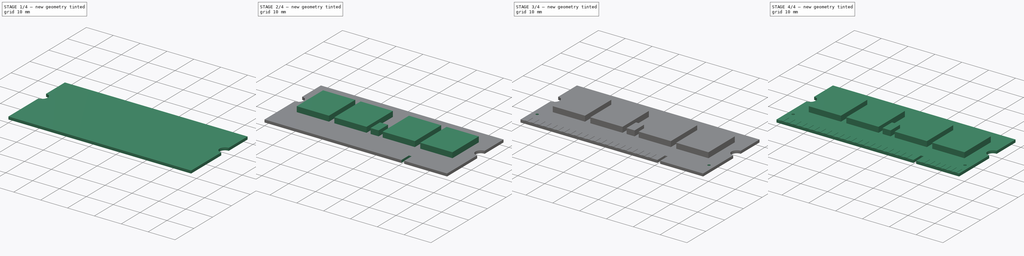
[diagram: build sequence overview — one tinted view per stage of 4, left to right]
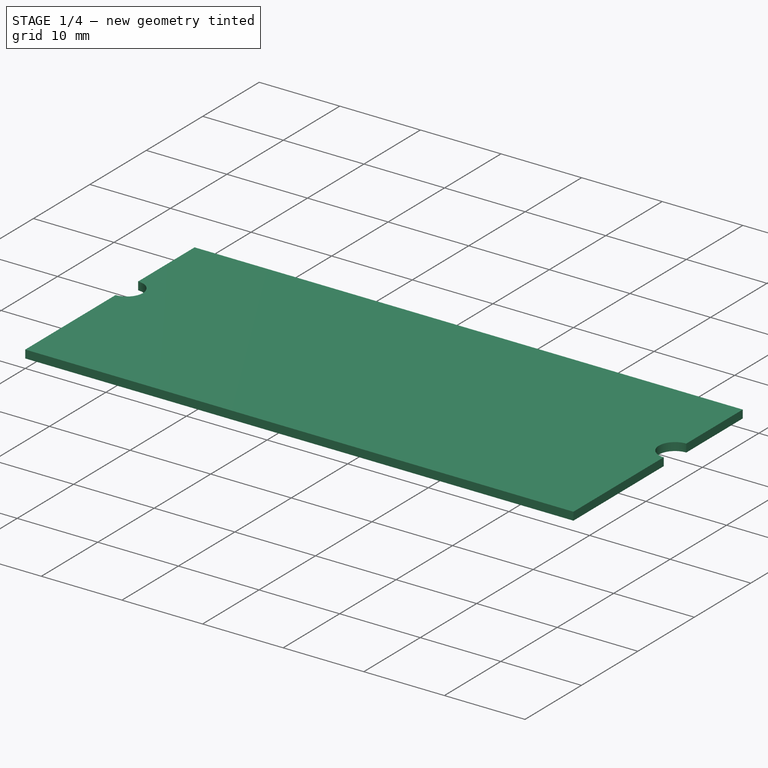
[diagram: stage 1 of 4 — iso view after this stage's code; geometry added in this stage tinted green]
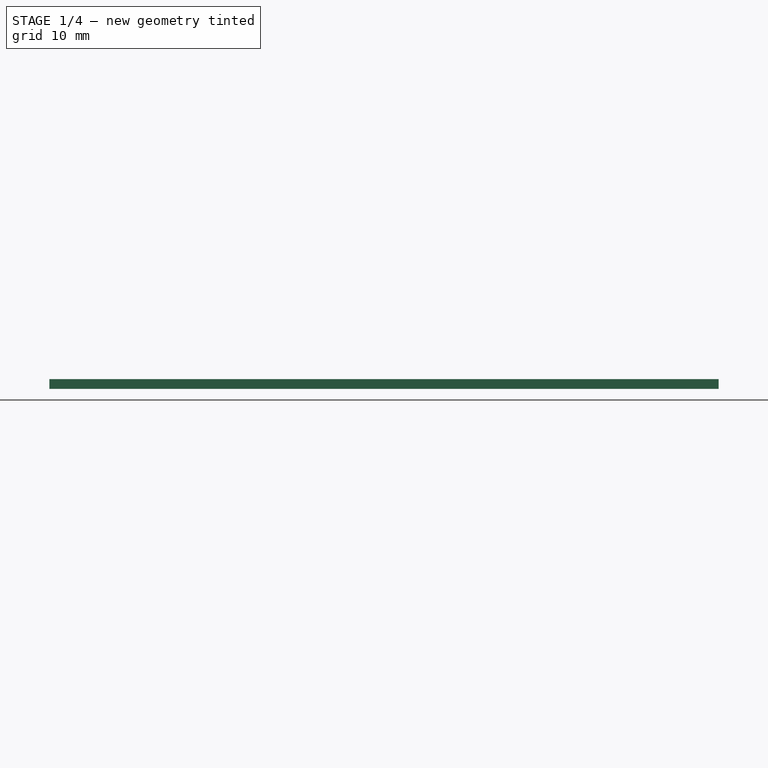
[diagram: stage 1 of 4 — front view after this stage's code; geometry added in this stage tinted green]
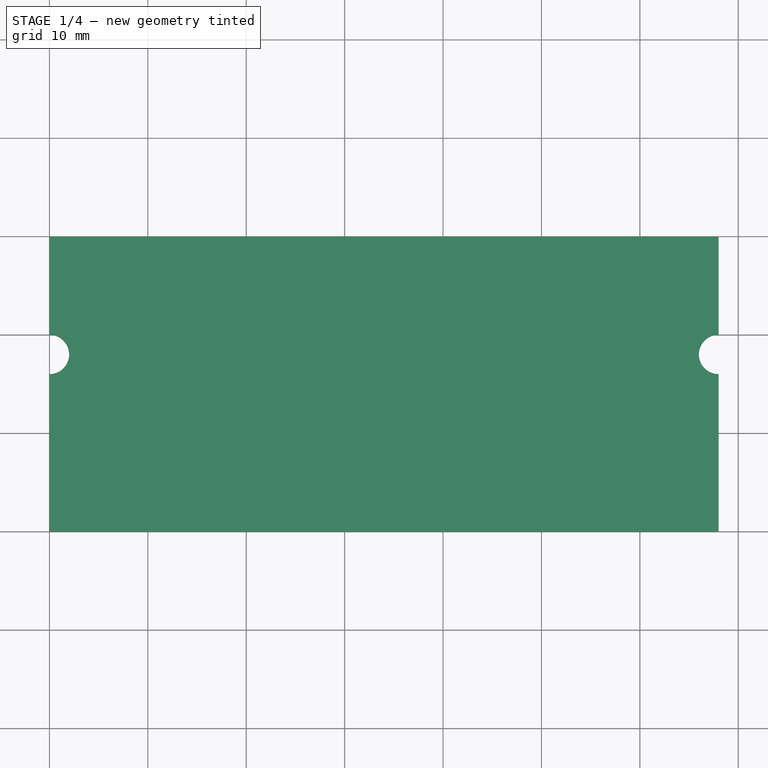
[diagram: stage 1 of 4 — top view after this stage's code; geometry added in this stage tinted green]
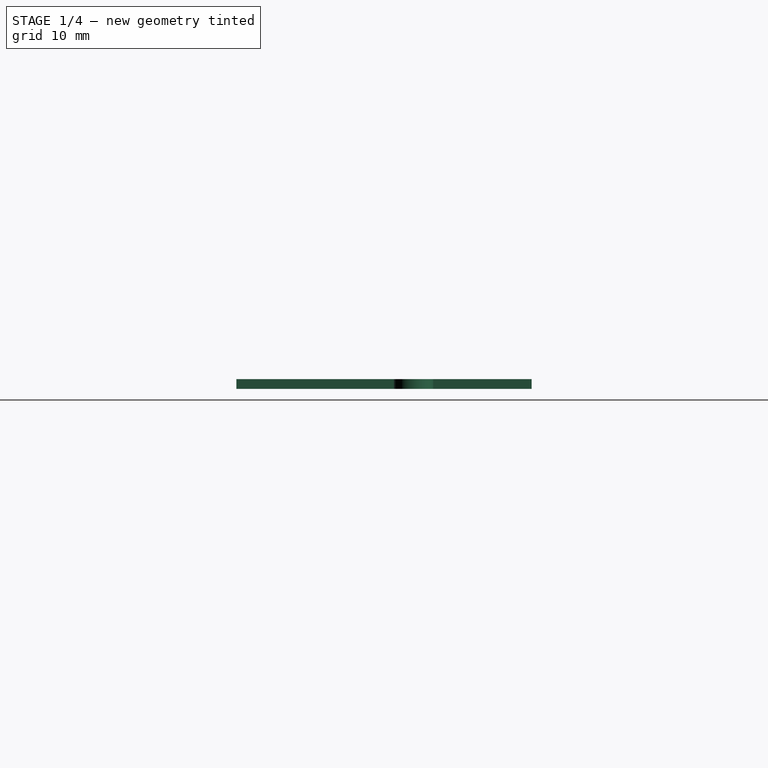
[diagram: stage 1 of 4 — right view after this stage's code; geometry added in this stage tinted green]
FCSTD DOCUMENT  (FreeCAD 0.16R6700 (Git))
Label: ram portatil 1
License: All rights reserved
LicenseURL: http://en.wikipedia.org/wiki/All_rights_reserved
objects: Sketcher::SketchObject×8, PartDesign::Pad×4, PartDesign::Pocket×3, PartDesign::LinearPattern×2, Part::Box×1
note: 25 computed .brp shape members not serialized (recipe doc carries the construction recipe); baked Part::Feature solids carry a one-line shape summary decoded from their .brp

FEATURE [Part::Box] Box  label="Cubo"
  Height = 1
  Length = 68
  Width = 30
FEATURE [Sketcher::SketchObject] Sketch
  Placement = pos=(0,0,1) rot=(0,0,1;0rad)
  Support = -> Box [Face6]
FEATURE [Sketcher::SketchObject] Sketch001
  ExternalGeometry = -> [Box]
  Placement = pos=(0,0,1) rot=(0,0,1;0rad)
  Support = -> Box [Face6]
  sketch-geometry (2):
    g0: Circle CenterX=68 CenterY=18 CenterZ=0 NormalX=0 NormalY=0 NormalZ=1 Radius=2
    g1: Circle CenterX=0 CenterY=18 CenterZ=0 NormalX=0 NormalY=0 NormalZ=1 Radius=2
  constraints (6):
    c: DistanceY(g1,g-3) = 12
    c: PointOnObject(g1,g-2)
    c: PointOnObject(g0,g-4)
    c: DistanceY(g0,g-4) = 12
    c: Radius(g1) = 2
    c: Radius(g0) = 2
FEATURE [PartDesign::Pocket] Pocket
  Length = 5
  Sketch = -> Sketch001
  Type = 0
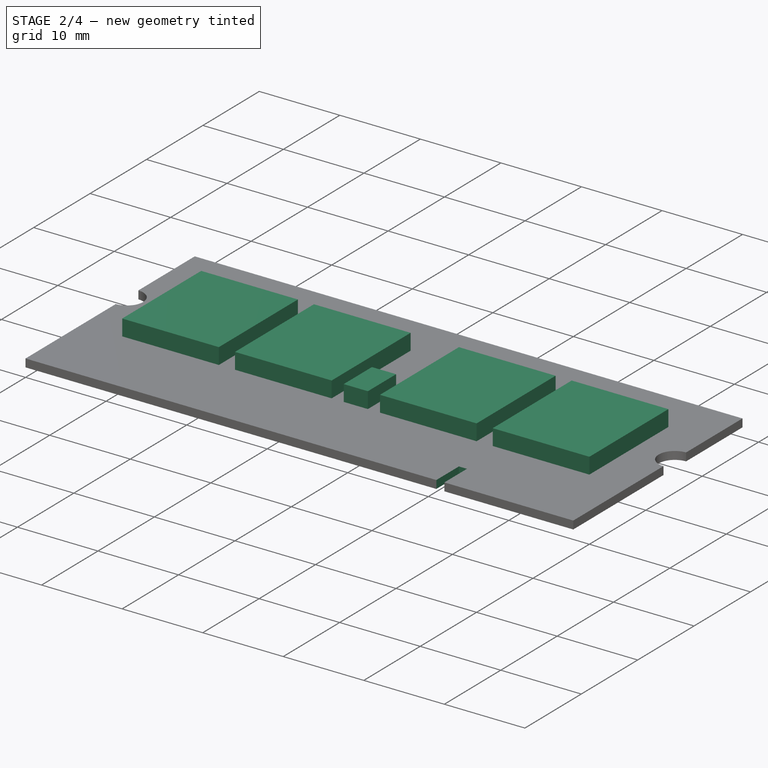
[diagram: stage 2 of 4 — iso view after this stage's code; geometry added in this stage tinted green]
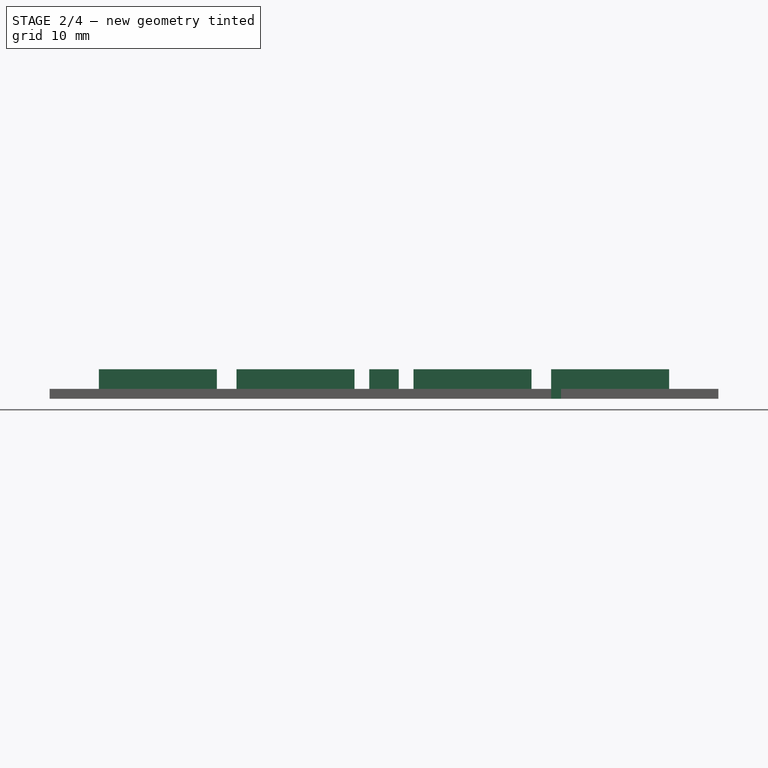
[diagram: stage 2 of 4 — front view after this stage's code; geometry added in this stage tinted green]
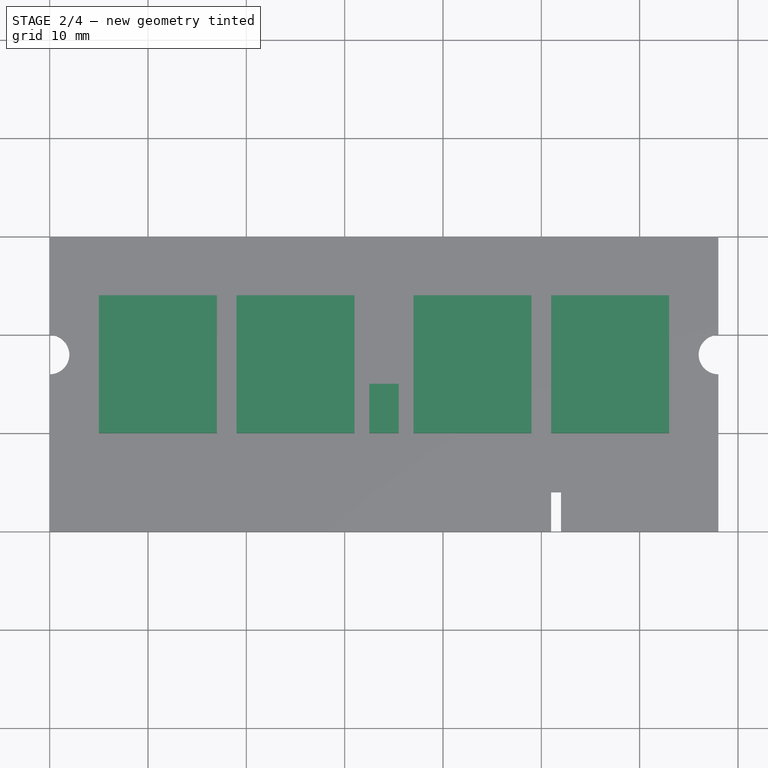
[diagram: stage 2 of 4 — top view after this stage's code; geometry added in this stage tinted green]
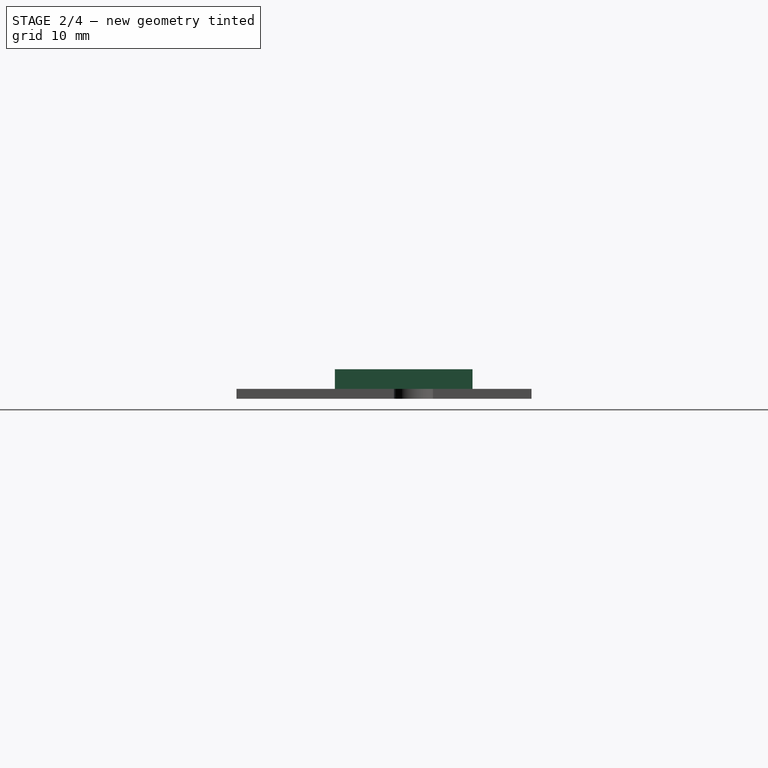
[diagram: stage 2 of 4 — right view after this stage's code; geometry added in this stage tinted green]
FEATURE [Sketcher::SketchObject] Sketch002
  ExternalGeometry = -> [Pocket]
  Placement = pos=(0,0,1) rot=(0,0,1;0rad)
  Support = -> Pocket [Face2]
  sketch-geometry (4):
    g0: LineSegment StartX=51 StartY=0 StartZ=0 EndX=52 EndY=0 EndZ=0
    g1: LineSegment StartX=52 StartY=0 StartZ=0 EndX=52 EndY=4 EndZ=0
    g2: LineSegment StartX=52 StartY=4 StartZ=0 EndX=51 EndY=4 EndZ=0
    g3: LineSegment StartX=51 StartY=4 StartZ=0 EndX=51 EndY=0 EndZ=0
  constraints (12):
    c: Coincident(g0,g1)
    c: Coincident(g1,g2)
    c: Coincident(g2,g3)
    c: Coincident(g3,g0)
    c: Horizontal(g0)
    c: Horizontal(g2)
    c: Vertical(g1)
    c: Vertical(g3)
    c: PointOnObject(g0,g-4)
    c: DistanceX(g2,g2) = 1
    c: DistanceX(g0,g-4) = 16
    c: DistanceY(g3,g3) = 4
FEATURE [PartDesign::Pocket] Pocket001
  Length = 5
  Sketch = -> Sketch002
  Type = 0
FEATURE [Sketcher::SketchObject] Sketch003
  ExternalGeometry = -> [Pocket001]
  Placement = pos=(0,0,1) rot=(0,0,1;0rad)
  Support = -> Pocket001 [Face2]
  sketch-geometry (16):
    g0: LineSegment StartX=5 StartY=24 StartZ=0 EndX=17 EndY=24 EndZ=0
    g1: LineSegment StartX=17 StartY=24 StartZ=0 EndX=17 EndY=10 EndZ=0
    g2: LineSegment StartX=17 StartY=10 StartZ=0 EndX=5 EndY=10 EndZ=0
    g3: LineSegment StartX=5 StartY=10 StartZ=0 EndX=5 EndY=24 EndZ=0
    g4: LineSegment StartX=19 StartY=24 StartZ=0 EndX=31 EndY=24 EndZ=0
    g5: LineSegment StartX=31 StartY=24 StartZ=0 EndX=31 EndY=10 EndZ=0
    g6: LineSegment StartX=31 StartY=10 StartZ=0 EndX=19 EndY=10 EndZ=0
    g7: LineSegment StartX=19 StartY=10 StartZ=0 EndX=19 EndY=24 EndZ=0
    g8: LineSegment StartX=37 StartY=24 StartZ=0 EndX=49 EndY=24 EndZ=0
    g9: LineSegment StartX=49 StartY=24 StartZ=0 EndX=49 EndY=10 EndZ=0
    g10: LineSegment StartX=49 StartY=10 StartZ=0 EndX=37 EndY=10 EndZ=0
    g11: LineSegment StartX=37 StartY=10 StartZ=0 EndX=37 EndY=24 EndZ=0
    g12: LineSegment StartX=51 StartY=24 StartZ=0 EndX=63 EndY=24 EndZ=0
    g13: LineSegment StartX=63 StartY=24 StartZ=0 EndX=63 EndY=10 EndZ=0
    g14: LineSegment StartX=63 StartY=10 StartZ=0 EndX=51 EndY=10 EndZ=0
    g15: LineSegment StartX=51 StartY=10 StartZ=0 EndX=51 EndY=24 EndZ=0
  constraints (48):
    c: Coincident(g0,g1)
    c: Coincident(g1,g2)
    c: Coincident(g2,g3)
    c: Coincident(g3,g0)
    c: Horizontal(g0)
    c: Horizontal(g2)
    c: Vertical(g1)
    c: Vertical(g3)
    c: DistanceX(g-3,g0) = 5
    c: DistanceY(g0,g-3) = 6
    c: DistanceX(g0,g0) = 12
    c: DistanceY(g1,g1) = 14
    c: Coincident(g4,g5)
    c: Coincident(g5,g6)
    c: Coincident(g6,g7)
    c: Coincident(g7,g4)
    c: Horizontal(g4)
    c: Horizontal(g6)
    c: Vertical(g5)
    c: Vertical(g7)
    c: DistanceX(g4,g4) = 12
    c: DistanceY(g5,g5) = 14
    c: DistanceX(g0,g4) = 2
    c: DistanceY(g0,g4) = 0
    c: Coincident(g8,g9)
    c: Coincident(g9,g10)
    c: Coincident(g10,g11)
    c: Coincident(g11,g8)
    c: Horizontal(g8)
    c: Horizontal(g10)
    c: Vertical(g9)
    c: Vertical(g11)
    c: Equal(g0,g8) = 12
    c: Equal(g1,g9) = 14
    c: Coincident(g12,g13)
    c: Coincident(g13,g14)
    c: Coincident(g14,g15)
    c: Coincident(g15,g12)
    c: Horizontal(g12)
    c: Horizontal(g14)
    c: Vertical(g13)
    c: Vertical(g15)
    c: Equal(g4,g12) = 12
    c: Equal(g5,g13) = 14
    c: DistanceX(g8,g12) = 2
    c: DistanceY(g8,g12) = 0
    c: DistanceX(g6,g10) = 18
    c: DistanceY(g5,g10) = 0
FEATURE [PartDesign::Pad] Pad
  Length = 2
  Length2 = 100
  Sketch = -> Sketch003
  Type = 0
FEATURE [Sketcher::SketchObject] Sketch004
  ExternalGeometry = -> [Pad]
  Placement = pos=(0,0,1) rot=(0,0,1;0rad)
  Support = -> Pad [Face2]
  sketch-geometry (4):
    g0: LineSegment StartX=32.5 StartY=15 StartZ=0 EndX=35.5 EndY=15 EndZ=0
    g1: LineSegment StartX=35.5 StartY=15 StartZ=0 EndX=35.5 EndY=10 EndZ=0
    g2: LineSegment StartX=35.5 StartY=10 StartZ=0 EndX=32.5 EndY=10 EndZ=0
    g3: LineSegment StartX=32.5 StartY=10 StartZ=0 EndX=32.5 EndY=15 EndZ=0
  constraints (12):
    c: Coincident(g0,g1)
    c: Coincident(g1,g2)
    c: Coincident(g2,g3)
    c: Coincident(g3,g0)
    c: Horizontal(g0)
    c: Horizontal(g2)
    c: Vertical(g1)
    c: Vertical(g3)
    c: DistanceY(g0,g-3) = 9
    c: DistanceX(g2,g2) = 3
    c: DistanceX(g-3,g2) = 1.5
    c: DistanceY(g3,g3) = 5
FEATURE [PartDesign::Pad] Pad001
  Length = 2
  Length2 = 100
  Sketch = -> Sketch004
  Type = 0
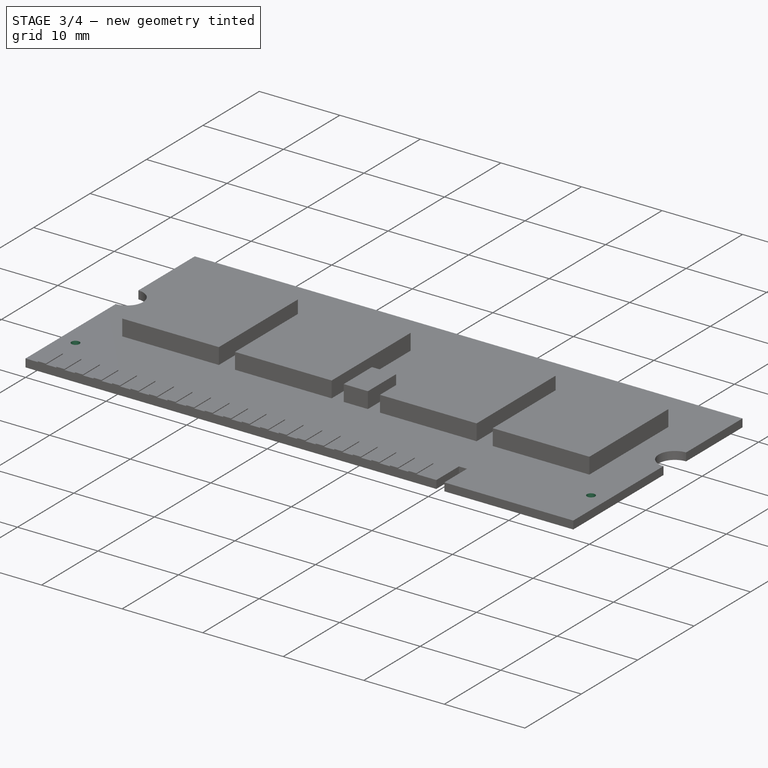
[diagram: stage 3 of 4 — iso view after this stage's code; geometry added in this stage tinted green]
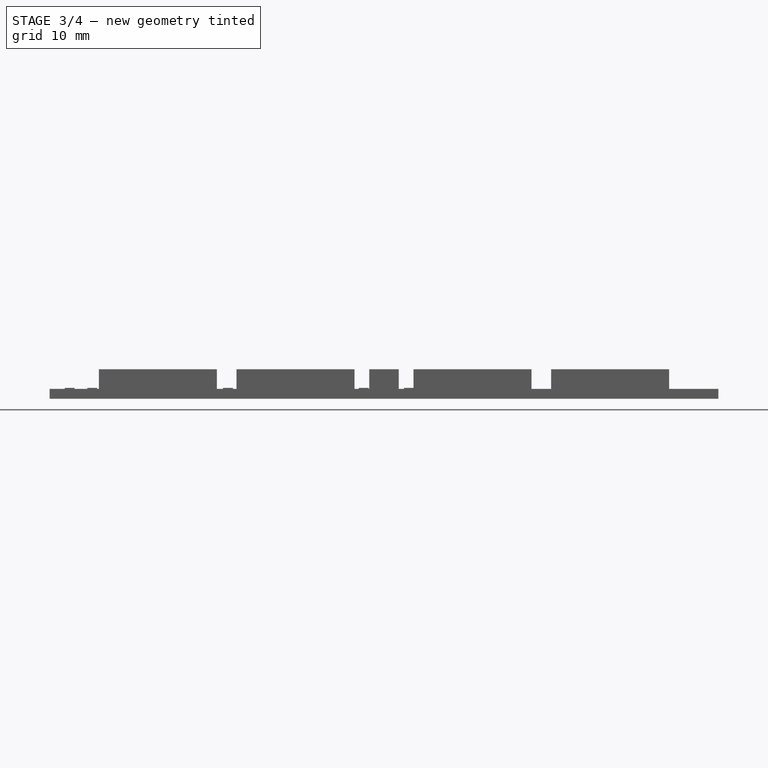
[diagram: stage 3 of 4 — front view after this stage's code; geometry added in this stage tinted green]
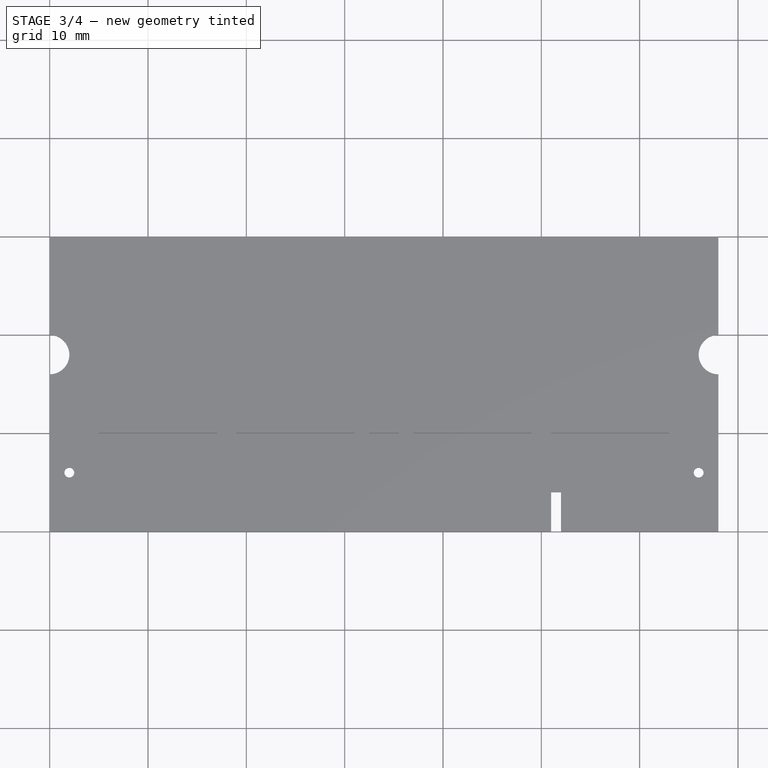
[diagram: stage 3 of 4 — top view after this stage's code; geometry added in this stage tinted green]
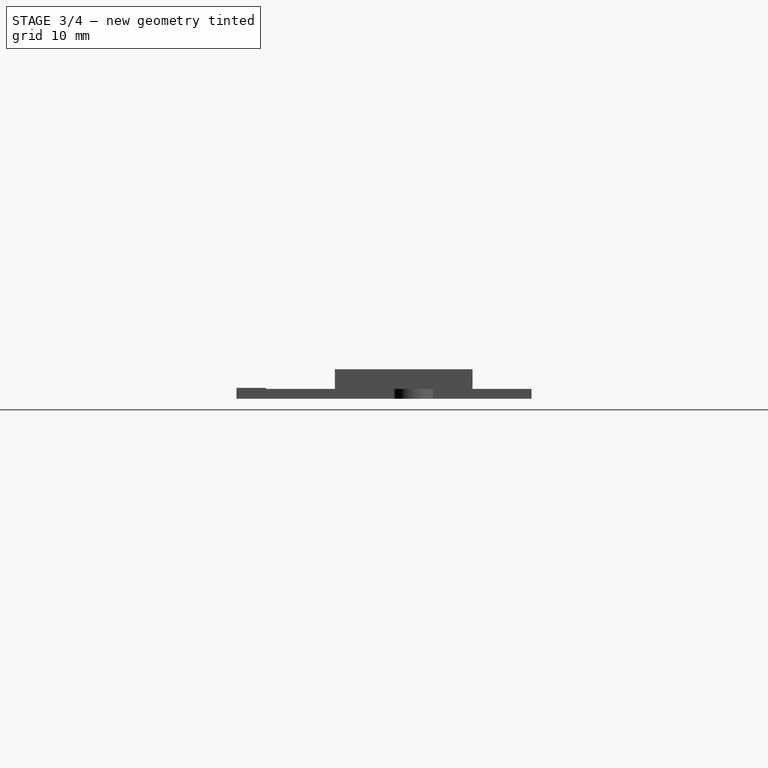
[diagram: stage 3 of 4 — right view after this stage's code; geometry added in this stage tinted green]
FEATURE [Sketcher::SketchObject] Sketch005
  ExternalGeometry = -> [Pad001]
  Placement = pos=(0,0,1) rot=(0,0,1;0rad)
  Support = -> Pad001 [Face2]
  sketch-geometry (2):
    g0: Circle CenterX=66 CenterY=6 CenterZ=0 NormalX=0 NormalY=0 NormalZ=1 Radius=0.5
    g1: Circle CenterX=2 CenterY=6 CenterZ=0 NormalX=0 NormalY=0 NormalZ=1 Radius=0.5
  constraints (6):
    c: DistanceY(g-4,g0) = 6
    c: DistanceX(g0,g-4) = 2
    c: Radius(g0) = 0.5
    c: DistanceY(g-1,g1) = 6
    c: DistanceX(g-1,g1) = 2
    c: Radius(g1) = 0.5
FEATURE [PartDesign::Pocket] Pocket002
  Length = 5
  Sketch = -> Sketch005
  Type = 1
FEATURE [Sketcher::SketchObject] Sketch006
  Placement = pos=(0,0,1) rot=(0,0,1;0rad)
  Support = -> Pocket002 [Face2]
  sketch-geometry (4):
    g0: LineSegment StartX=1.31435 StartY=0 StartZ=0 EndX=2.31435 EndY=0 EndZ=0
    g1: LineSegment StartX=2.31435 StartY=0 StartZ=0 EndX=2.31435 EndY=3 EndZ=0
    g2: LineSegment StartX=2.31435 StartY=3 StartZ=0 EndX=1.31435 EndY=3 EndZ=0
    g3: LineSegment StartX=1.31435 StartY=3 StartZ=0 EndX=1.31435 EndY=0 EndZ=0
  constraints (12):
    c: Coincident(g0,g1)
    c: Coincident(g1,g2)
    c: Coincident(g2,g3)
    c: Coincident(g3,g0)
    c: Horizontal(g0)
    c: Horizontal(g2)
    c: Vertical(g1)
    c: Vertical(g3)
    c: PointOnObject(g0,g-1)
    c: DistanceX(g2,g2) = 1
    c: DistanceY(g1,g1) = 3
    c: DistanceY(g-1,g0) = 0
FEATURE [PartDesign::Pad] Pad002
  Length = 0.1
  Length2 = 100
  Sketch = -> Sketch006
  Type = 0
FEATURE [PartDesign::LinearPattern] LinearPattern
  Direction = -> Sketch006 [H_Axis]
  Length = 46
  Occurrences = 21
  Originals = -> [Pad002]
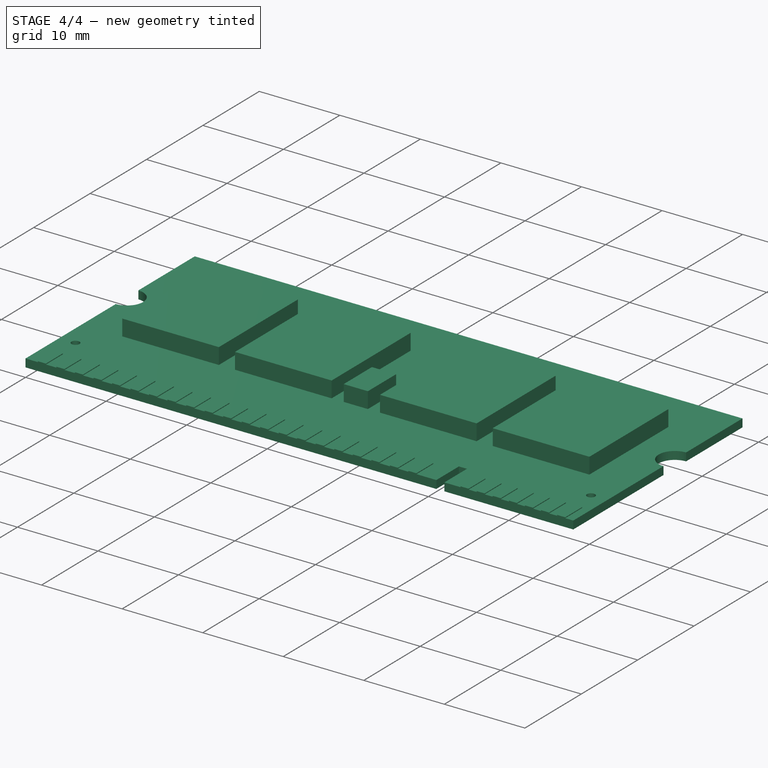
[diagram: stage 4 of 4 — iso view after this stage's code; geometry added in this stage tinted green]
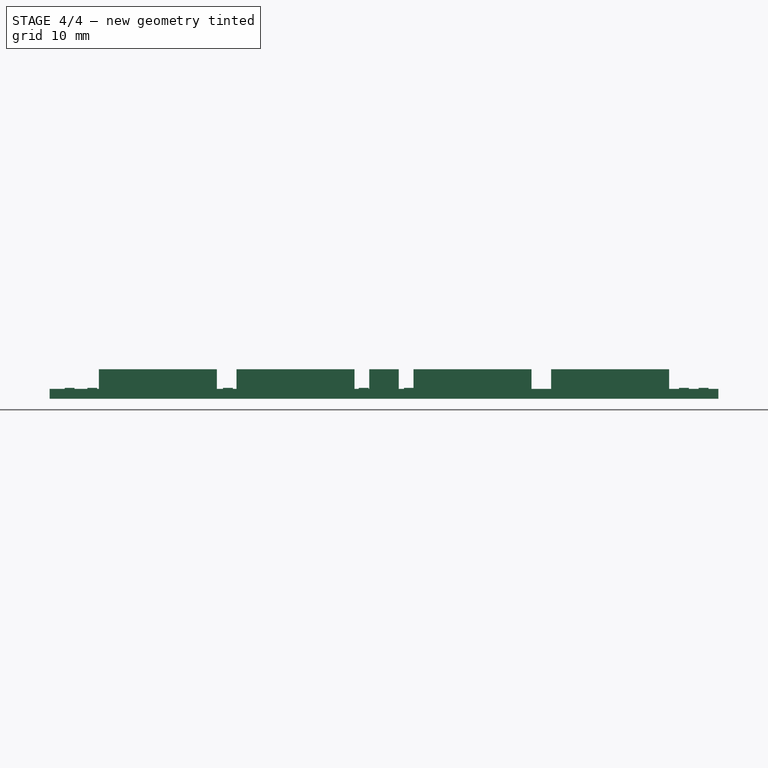
[diagram: stage 4 of 4 — front view after this stage's code; geometry added in this stage tinted green]
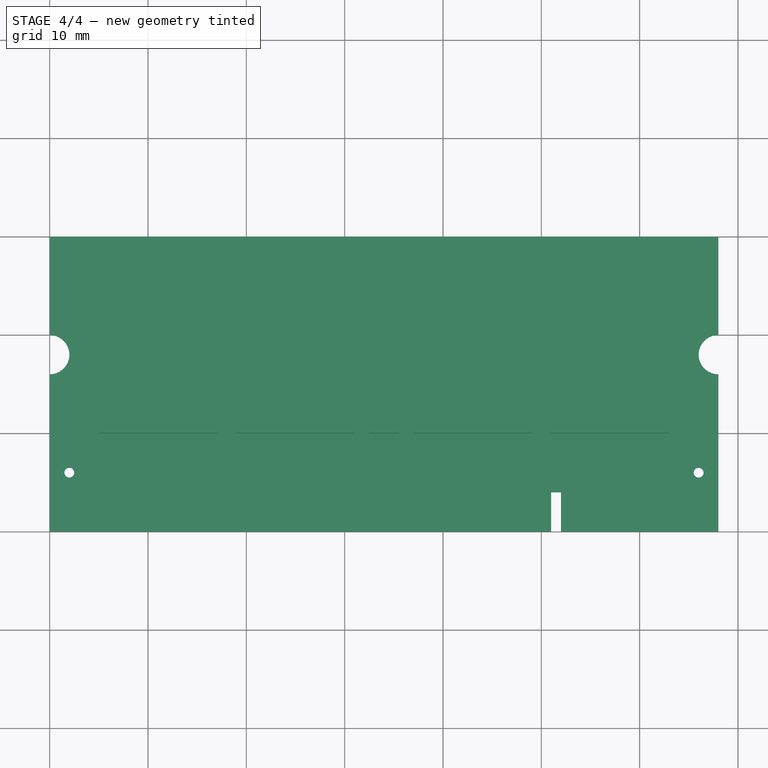
[diagram: stage 4 of 4 — top view after this stage's code; geometry added in this stage tinted green]
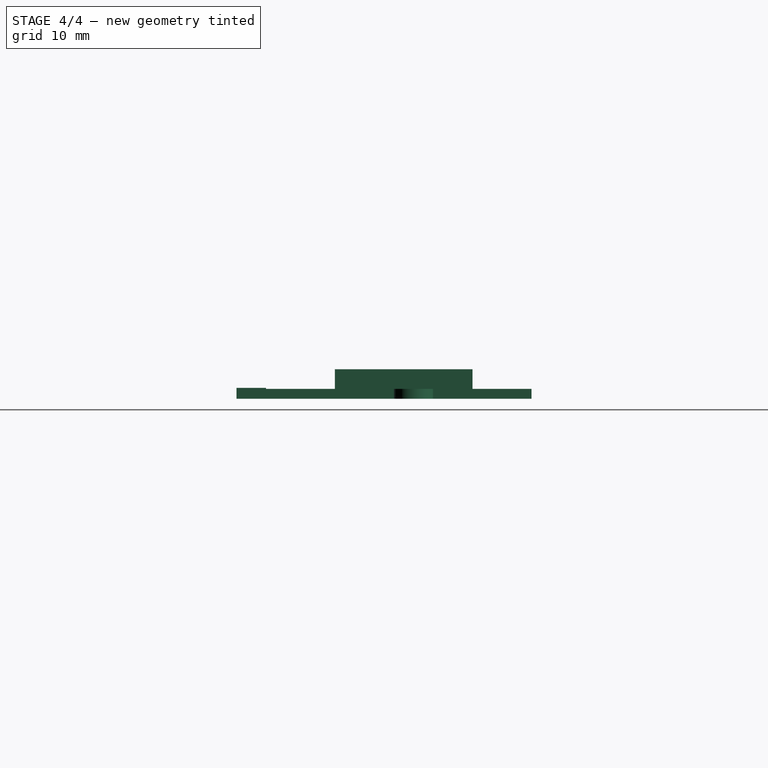
[diagram: stage 4 of 4 — right view after this stage's code; geometry added in this stage tinted green]
FEATURE [Sketcher::SketchObject] Sketch007
  ExternalGeometry = -> [LinearPattern]
  Placement = pos=(0,0,1) rot=(0,0,1;0rad)
  Support = -> LinearPattern [Face2]
  sketch-geometry (4):
    g0: LineSegment StartX=54 StartY=3 StartZ=0 EndX=55 EndY=3 EndZ=0
    g1: LineSegment StartX=55 StartY=3 StartZ=0 EndX=55 EndY=0 EndZ=0
    g2: LineSegment StartX=55 StartY=0 StartZ=0 EndX=54 EndY=0 EndZ=0
    g3: LineSegment StartX=54 StartY=0 StartZ=0 EndX=54 EndY=3 EndZ=0
  constraints (13):
    c: Coincident(g0,g1)
    c: Coincident(g1,g2)
    c: Coincident(g2,g3)
    c: Coincident(g3,g0)
    c: Horizontal(g0)
    c: Horizontal(g2)
    c: Vertical(g1)
    c: Vertical(g3)
    c: PointOnObject(g1,g-1)
    c: DistanceY(g1,g1) = 3
    c: DistanceX(g0,g0) = 1
    c: DistanceX(g-3,g0) = 2
    c: DistanceX(g-3,g-3) = 16
FEATURE [PartDesign::Pad] Pad003
  Length = 0.1
  Length2 = 100
  Sketch = -> Sketch007
  Type = 0
FEATURE [PartDesign::LinearPattern] LinearPattern001
  Direction = -> Sketch007 [H_Axis]
  Length = 12
  Occurrences = 7
  Originals = -> [Pad003]
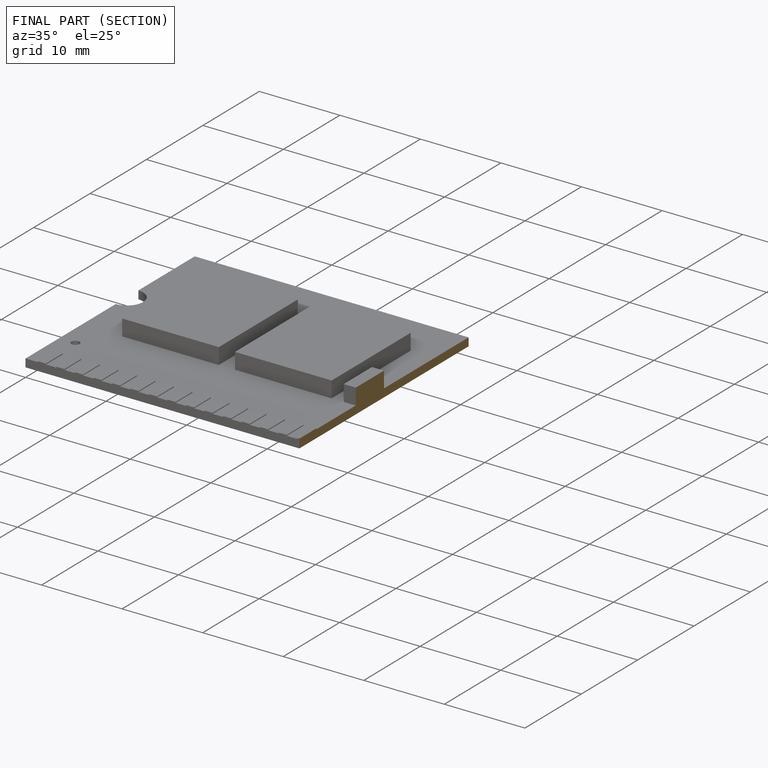
[diagram: finished part — half-section view (interior)]
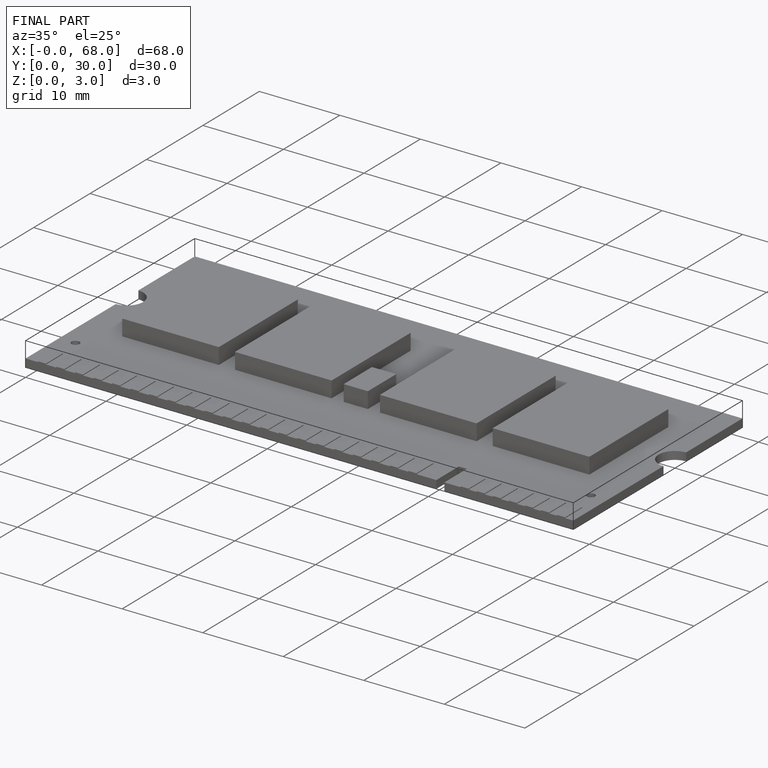
[diagram: finished part — iso view with bounding-box wireframe]
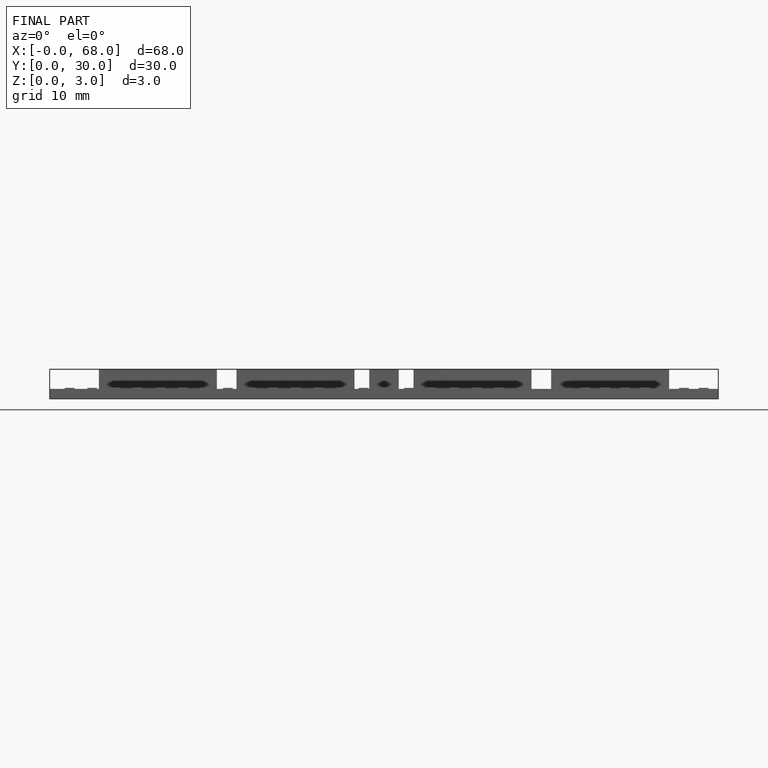
[diagram: finished part — front view with bounding-box wireframe]
